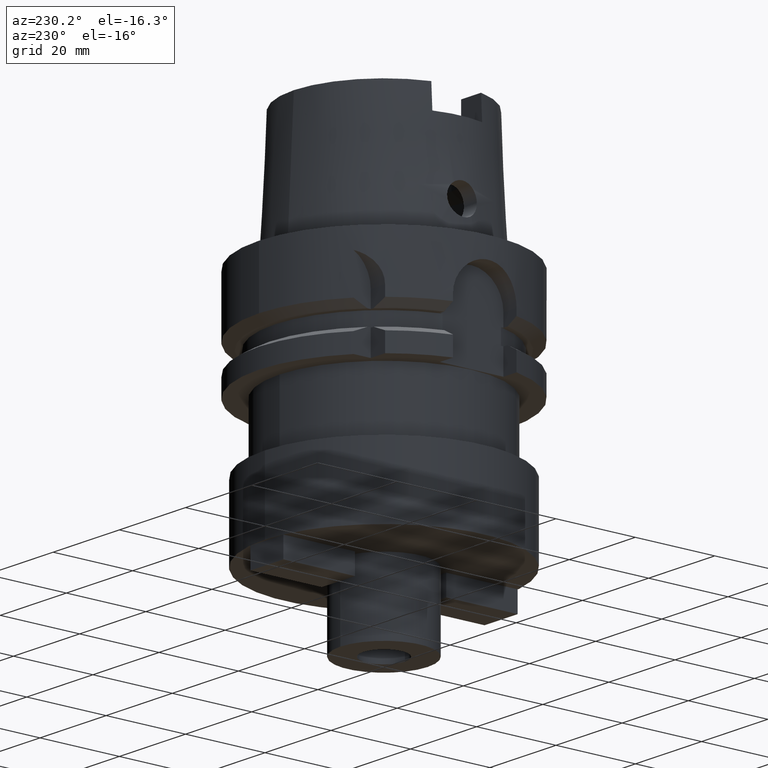
[diagram: clean part render]
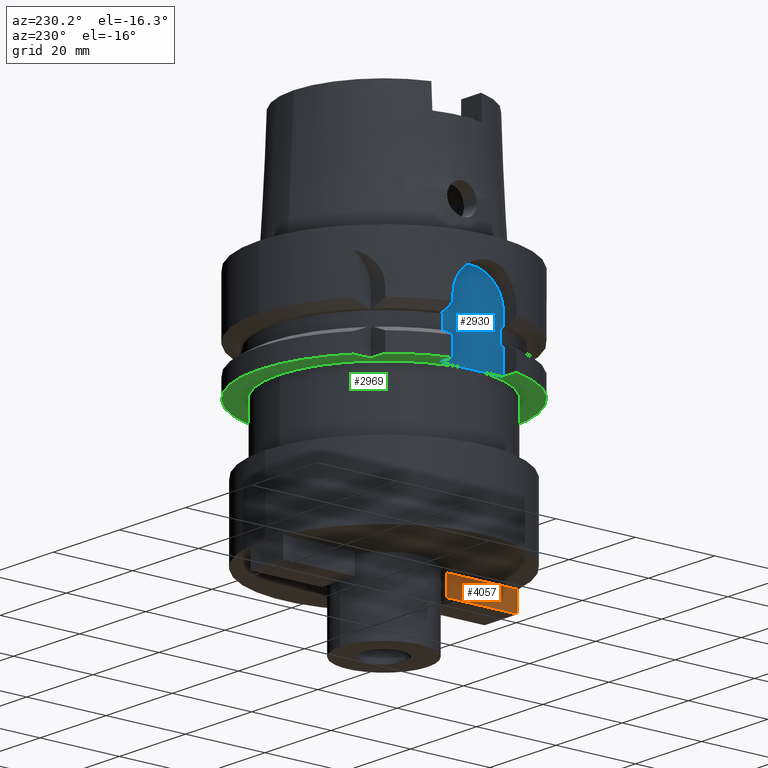
[diagram: same view with three faces highlighted in distinct colors, each labeled with its STEP entity id]
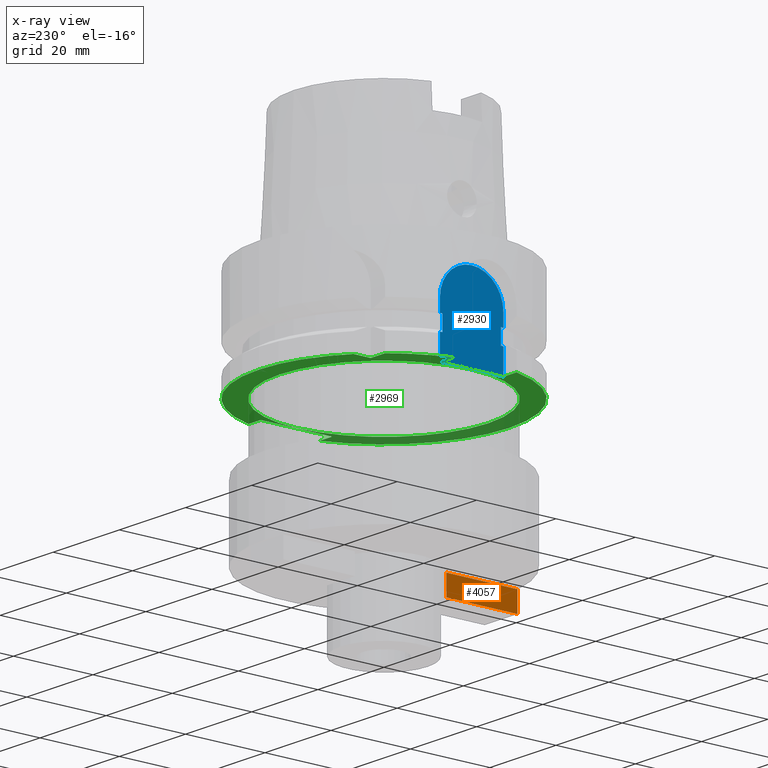
[diagram: x-ray of the same camera — body ghosted, the three highlighted faces saturated]
A machine part, auxiliary view with three faces highlighted in distinct colors.
The next image is the same camera in x-ray (body ghosted, the three faces saturated) — at least one of them is partly hidden behind the body in this view.
Their STEP definitions:

[orange] entity #4057 — the highlighted planar face has unit normal (-1, 0, 0).
#2103=DIRECTION('',(0.E0,-1.E0,0.E0));
#2104=VECTOR('',#2103,1.8E1);
#2105=CARTESIAN_POINT('',(-5.E0,-1.15E1,-6.E1));
#2106=LINE('',#2105,#2104);
#2110=DIRECTION('',(0.E0,0.E0,-1.E0));
#2111=VECTOR('',#2110,5.E0);
#2112=CARTESIAN_POINT('',(-5.E0,-2.95E1,-6.E1));
#2113=LINE('',#2112,#2111);
#2117=DIRECTION('',(0.E0,1.E0,0.E0));
#2118=VECTOR('',#2117,1.8E1);
#2119=CARTESIAN_POINT('',(-5.E0,-2.95E1,-6.5E1));
#2120=LINE('',#2119,#2118);
#2124=DIRECTION('',(0.E0,0.E0,1.E0));
#2125=VECTOR('',#2124,5.E0);
#2126=CARTESIAN_POINT('',(-5.E0,-1.15E1,-6.5E1));
#2127=LINE('',#2126,#2125);
#2299=CARTESIAN_POINT('',(-5.E0,-2.95E1,-6.E1));
#2300=VERTEX_POINT('',#2299);
#2301=CARTESIAN_POINT('',(-5.E0,-1.15E1,-6.E1));
#2302=VERTEX_POINT('',#2301);
#2485=CARTESIAN_POINT('',(-5.E0,-1.15E1,-6.5E1));
#2486=VERTEX_POINT('',#2485);
#2487=CARTESIAN_POINT('',(-5.E0,-2.95E1,-6.5E1));
#2488=VERTEX_POINT('',#2487);
#4044=CARTESIAN_POINT('',(-5.E0,0.E0,0.E0));
#4045=DIRECTION('',(-1.E0,0.E0,0.E0));
#4046=DIRECTION('',(0.E0,0.E0,1.E0));
#4047=AXIS2_PLACEMENT_3D('',#4044,#4045,#4046);
#4048=PLANE('',#4047);
#4049=ORIENTED_EDGE('',*,*,#3476,.T.);
#4051=ORIENTED_EDGE('',*,*,#4050,.T.);
#4053=ORIENTED_EDGE('',*,*,#4052,.T.);
#4054=ORIENTED_EDGE('',*,*,#4036,.T.);
#4055=EDGE_LOOP('',(#4049,#4051,#4053,#4054));
#4056=FACE_OUTER_BOUND('',#4055,.F.);
#3476=EDGE_CURVE('',#2302,#2300,#2106,.T.);
#4036=EDGE_CURVE('',#2486,#2302,#2127,.T.);
#4050=EDGE_CURVE('',#2300,#2488,#2113,.T.);
#4052=EDGE_CURVE('',#2488,#2486,#2120,.T.);
#4057=ADVANCED_FACE('',(#4056),#4048,.T.);

[blue] entity #2930 — the highlighted planar face has unit normal (1, 0, 0).
#563=DIRECTION('',(0.E0,0.E0,-1.E0));
#564=VECTOR('',#563,3.125E0);
#565=CARTESIAN_POINT('',(-2.65E1,8.E0,-1.3E1));
#566=LINE('',#565,#564);
#606=DIRECTION('',(0.E0,0.E0,1.E0));
#607=VECTOR('',#606,3.125E0);
#608=CARTESIAN_POINT('',(-2.65E1,-8.E0,-1.6125E1));
#609=LINE('',#608,#607);
#659=DIRECTION('',(0.E0,1.E0,0.E0));
#660=VECTOR('',#659,1.6E1);
#661=CARTESIAN_POINT('',(-2.65E1,-8.E0,-2.6E1));
#662=LINE('',#661,#660);
#666=DIRECTION('',(-5.998158823386E-14,1.E0,0.E0));
#667=VECTOR('',#666,6.515307716501E-1);
#668=CARTESIAN_POINT('',(-2.65E1,7.348469228350E0,-1.6125E1));
#669=LINE('',#668,#667);
#673=CARTESIAN_POINT('',(-2.65E1,0.E0,-1.3E1));
#674=DIRECTION('',(1.E0,0.E0,0.E0));
#675=DIRECTION('',(0.E0,1.E0,0.E0));
#676=AXIS2_PLACEMENT_3D('',#673,#674,#675);
#681=CARTESIAN_POINT('',(-2.65E1,0.E0,-1.3E1));
#682=DIRECTION('',(1.E0,0.E0,0.E0));
#683=DIRECTION('',(0.E0,0.E0,1.E0));
#684=AXIS2_PLACEMENT_3D('',#681,#682,#683);
#689=DIRECTION('',(5.998158823386E-14,1.E0,0.E0));
#690=VECTOR('',#689,6.515307716501E-1);
#691=CARTESIAN_POINT('',(-2.65E1,-8.E0,-1.6125E1));
#692=LINE('',#691,#690);
#907=DIRECTION('',(0.E0,0.E0,1.E0));
#908=VECTOR('',#907,6.125E0);
#909=CARTESIAN_POINT('',(-2.65E1,-8.E0,-2.6E1));
#910=LINE('',#909,#908);
#931=DIRECTION('',(5.998158823386E-14,1.E0,0.E0));
#932=VECTOR('',#931,6.515307716501E-1);
#933=CARTESIAN_POINT('',(-2.65E1,-8.E0,-1.9875E1));
#934=LINE('',#933,#932);
#977=DIRECTION('',(0.E0,0.E0,1.E0));
#978=VECTOR('',#977,3.75E0);
#979=CARTESIAN_POINT('',(-2.65E1,-7.348469228350E0,-1.9875E1));
#980=LINE('',#979,#978);
#1134=DIRECTION('',(0.E0,0.E0,-1.E0));
#1135=VECTOR('',#1134,3.75E0);
#1136=CARTESIAN_POINT('',(-2.65E1,7.348469228350E0,-1.6125E1));
#1137=LINE('',#1136,#1135);
#1187=DIRECTION('',(-5.998158823386E-14,1.E0,0.E0));
#1188=VECTOR('',#1187,6.515307716501E-1);
#1189=CARTESIAN_POINT('',(-2.65E1,7.348469228350E0,-1.9875E1));
#1190=LINE('',#1189,#1188);
#1252=DIRECTION('',(0.E0,0.E0,-1.E0));
#1253=VECTOR('',#1252,6.125E0);
#1254=CARTESIAN_POINT('',(-2.65E1,8.E0,-1.9875E1));
#1255=LINE('',#1254,#1253);
#2327=CARTESIAN_POINT('',(-2.65E1,8.E0,-2.6E1));
#2328=VERTEX_POINT('',#2327);
#2329=CARTESIAN_POINT('',(-2.65E1,-8.E0,-2.6E1));
#2330=VERTEX_POINT('',#2329);
#2373=CARTESIAN_POINT('',(-2.65E1,-8.E0,-1.9875E1));
#2374=VERTEX_POINT('',#2373);
#2377=CARTESIAN_POINT('',(-2.65E1,-8.E0,-1.6125E1));
#2379=VERTEX_POINT('',#2377);
#2381=CARTESIAN_POINT('',(-2.65E1,-8.E0,-1.3E1));
#2382=VERTEX_POINT('',#2381);
#2387=CARTESIAN_POINT('',(-2.65E1,8.E0,-1.9875E1));
#2388=VERTEX_POINT('',#2387);
#2389=CARTESIAN_POINT('',(-2.65E1,7.348469228350E0,-1.9875E1));
#2390=VERTEX_POINT('',#2389);
#2391=CARTESIAN_POINT('',(-2.65E1,7.348469228350E0,-1.6125E1));
#2392=VERTEX_POINT('',#2391);
#2393=CARTESIAN_POINT('',(-2.65E1,8.E0,-1.6125E1));
#2394=VERTEX_POINT('',#2393);
#2395=CARTESIAN_POINT('',(-2.65E1,8.E0,-1.3E1));
#2396=VERTEX_POINT('',#2395);
#2397=CARTESIAN_POINT('',(-2.65E1,0.E0,-5.E0));
#2398=VERTEX_POINT('',#2397);
#2399=CARTESIAN_POINT('',(-2.65E1,-7.348469228350E0,-1.6125E1));
#2400=VERTEX_POINT('',#2399);
#2401=CARTESIAN_POINT('',(-2.65E1,-7.348469228350E0,-1.9875E1));
#2402=VERTEX_POINT('',#2401);
#2903=CARTESIAN_POINT('',(-2.65E1,0.E0,0.E0));
#2904=DIRECTION('',(1.E0,0.E0,0.E0));
#2905=DIRECTION('',(0.E0,0.E0,1.E0));
#2906=AXIS2_PLACEMENT_3D('',#2903,#2904,#2905);
#2907=PLANE('',#2906);
#2909=ORIENTED_EDGE('',*,*,#2908,.T.);
#2911=ORIENTED_EDGE('',*,*,#2910,.F.);
#2913=ORIENTED_EDGE('',*,*,#2912,.F.);
#2915=ORIENTED_EDGE('',*,*,#2914,.F.);
#2916=ORIENTED_EDGE('',*,*,#2777,.T.);
#2917=ORIENTED_EDGE('',*,*,#2843,.F.);
#2918=ORIENTED_EDGE('',*,*,#2858,.T.);
#2919=ORIENTED_EDGE('',*,*,#2856,.T.);
#2920=ORIENTED_EDGE('',*,*,#2871,.F.);
#2921=ORIENTED_EDGE('',*,*,#2885,.T.);
#2923=ORIENTED_EDGE('',*,*,#2922,.F.);
#2925=ORIENTED_EDGE('',*,*,#2924,.F.);
#2927=ORIENTED_EDGE('',*,*,#2926,.F.);
#2928=EDGE_LOOP('',(#2909,#2911,#2913,#2915,#2916,#2917,#2918,#2919,#2920,#2921,
#2923,#2925,#2927));
#2929=FACE_OUTER_BOUND('',#2928,.F.);
#677=CIRCLE('',#676,8.E0);
#685=CIRCLE('',#684,8.E0);
#2777=EDGE_CURVE('',#2392,#2394,#669,.T.);
#2843=EDGE_CURVE('',#2396,#2394,#566,.T.);
#2856=EDGE_CURVE('',#2398,#2382,#685,.T.);
#2858=EDGE_CURVE('',#2396,#2398,#677,.T.);
#2871=EDGE_CURVE('',#2379,#2382,#609,.T.);
#2885=EDGE_CURVE('',#2379,#2400,#692,.T.);
#2908=EDGE_CURVE('',#2330,#2328,#662,.T.);
#2910=EDGE_CURVE('',#2388,#2328,#1255,.T.);
#2912=EDGE_CURVE('',#2390,#2388,#1190,.T.);
#2914=EDGE_CURVE('',#2392,#2390,#1137,.T.);
#2922=EDGE_CURVE('',#2402,#2400,#980,.T.);
#2924=EDGE_CURVE('',#2374,#2402,#934,.T.);
#2926=EDGE_CURVE('',#2330,#2374,#910,.T.);
#2930=ADVANCED_FACE('',(#2929),#2907,.F.);

[green] entity #2969 — the highlighted planar face has unit normal (0, 0, 1).
#659=DIRECTION('',(0.E0,1.E0,0.E0));
#660=VECTOR('',#659,1.6E1);
#661=CARTESIAN_POINT('',(-2.65E1,-8.E0,-2.6E1));
#662=LINE('',#661,#660);
#696=DIRECTION('',(-1.E0,-1.540316790609E-13,0.E0));
#697=VECTOR('',#696,4.336187047278E0);
#698=CARTESIAN_POINT('',(-2.E1,2.E1,-2.6E1));
#699=LINE('',#698,#697);
#703=CARTESIAN_POINT('',(0.E0,0.E0,-2.6E1));
#704=DIRECTION('',(0.E0,0.E0,1.E0));
#705=DIRECTION('',(-7.725773665802E-1,6.349206349206E-1,0.E0));
#706=AXIS2_PLACEMENT_3D('',#703,#704,#705);
#711=DIRECTION('',(-1.E0,-8.686570378871E-14,0.E0));
#712=VECTOR('',#711,3.967195473163E0);
#713=CARTESIAN_POINT('',(-2.65E1,-8.E0,-2.6E1));
#714=LINE('',#713,#712);
#718=CARTESIAN_POINT('',(0.E0,0.E0,-2.6E1));
#719=DIRECTION('',(0.E0,0.E0,1.E0));
#720=DIRECTION('',(-9.672125547036E-1,-2.539682539683E-1,0.E0));
#721=AXIS2_PLACEMENT_3D('',#718,#719,#720);
#726=CARTESIAN_POINT('',(0.E0,0.E0,-2.6E1));
#727=DIRECTION('',(0.E0,0.E0,1.E0));
#728=DIRECTION('',(0.E0,-1.E0,0.E0));
#729=AXIS2_PLACEMENT_3D('',#726,#727,#728);
#734=DIRECTION('',(0.E0,1.E0,0.E0));
#735=VECTOR('',#734,1.8E1);
#736=CARTESIAN_POINT('',(2.65E1,-9.E0,-2.6E1));
#737=LINE('',#736,#735);
#741=DIRECTION('',(1.E0,-7.275179563200E-14,0.E0));
#742=VECTOR('',#741,3.686917696248E0);
#743=CARTESIAN_POINT('',(2.65E1,9.E0,-2.6E1));
#744=LINE('',#743,#742);
#748=CARTESIAN_POINT('',(0.E0,0.E0,-2.6E1));
#749=DIRECTION('',(0.E0,0.E0,1.E0));
#750=DIRECTION('',(9.583148474999E-1,2.857142857143E-1,0.E0));
#751=AXIS2_PLACEMENT_3D('',#748,#749,#750);
#756=CARTESIAN_POINT('',(0.E0,0.E0,-2.6E1));
#757=DIRECTION('',(0.E0,0.E0,1.E0));
#758=DIRECTION('',(0.E0,1.E0,0.E0));
#759=AXIS2_PLACEMENT_3D('',#756,#757,#758);
#764=CARTESIAN_POINT('',(0.E0,0.E0,-2.6E1));
#765=DIRECTION('',(0.E0,0.E0,-1.E0));
#766=DIRECTION('',(0.E0,-1.E0,0.E0));
#767=AXIS2_PLACEMENT_3D('',#764,#765,#766);
#772=CARTESIAN_POINT('',(0.E0,0.E0,-2.6E1));
#773=DIRECTION('',(0.E0,0.E0,-1.E0));
#774=DIRECTION('',(0.E0,1.E0,0.E0));
#775=AXIS2_PLACEMENT_3D('',#772,#773,#774);
#780=DIRECTION('',(1.556703139446E-13,1.E0,0.E0));
#781=VECTOR('',#780,4.336187047278E0);
#782=CARTESIAN_POINT('',(-2.E1,2.E1,-2.6E1));
#783=LINE('',#782,#781);
#876=DIRECTION('',(1.E0,6.889739586341E-14,0.E0));
#877=VECTOR('',#876,3.686917696248E0);
#878=CARTESIAN_POINT('',(2.65E1,-9.E0,-2.6E1));
#879=LINE('',#878,#877);
#1235=DIRECTION('',(-1.E0,8.776122650818E-14,0.E0));
#1236=VECTOR('',#1235,3.967195473163E0);
#1237=CARTESIAN_POINT('',(-2.65E1,8.E0,-2.6E1));
#1238=LINE('',#1237,#1236);
#2315=CARTESIAN_POINT('',(0.E0,2.63E1,-2.6E1));
#2316=VERTEX_POINT('',#2315);
#2317=CARTESIAN_POINT('',(0.E0,-2.63E1,-2.6E1));
#2318=VERTEX_POINT('',#2317);
#2319=CARTESIAN_POINT('',(-2.E1,2.E1,-2.6E1));
#2320=CARTESIAN_POINT('',(-2.E1,2.433618704728E1,-2.6E1));
#2321=VERTEX_POINT('',#2319);
#2322=VERTEX_POINT('',#2320);
#2323=CARTESIAN_POINT('',(-2.433618704728E1,2.E1,-2.6E1));
#2324=VERTEX_POINT('',#2323);
#2325=CARTESIAN_POINT('',(-3.046719547316E1,8.E0,-2.6E1));
#2326=VERTEX_POINT('',#2325);
#2327=CARTESIAN_POINT('',(-2.65E1,8.E0,-2.6E1));
#2328=VERTEX_POINT('',#2327);
#2329=CARTESIAN_POINT('',(-2.65E1,-8.E0,-2.6E1));
#2330=VERTEX_POINT('',#2329);
#2331=CARTESIAN_POINT('',(-3.046719547316E1,-8.E0,-2.6E1));
#2332=VERTEX_POINT('',#2331);
#2333=CARTESIAN_POINT('',(-1.569039500652E-14,-3.15E1,-2.6E1));
#2334=CARTESIAN_POINT('',(3.018691769625E1,-9.E0,-2.6E1));
#2335=VERTEX_POINT('',#2333);
#2336=VERTEX_POINT('',#2334);
#2337=CARTESIAN_POINT('',(2.65E1,-9.E0,-2.6E1));
#2338=VERTEX_POINT('',#2337);
#2339=CARTESIAN_POINT('',(2.65E1,9.E0,-2.6E1));
#2340=VERTEX_POINT('',#2339);
#2341=CARTESIAN_POINT('',(3.018691769625E1,9.E0,-2.6E1));
#2342=VERTEX_POINT('',#2341);
#2343=CARTESIAN_POINT('',(1.065814103640E-14,3.15E1,-2.6E1));
#2344=VERTEX_POINT('',#2343);
#2931=CARTESIAN_POINT('',(0.E0,0.E0,-2.6E1));
#2932=DIRECTION('',(0.E0,0.E0,1.E0));
#2933=DIRECTION('',(0.E0,1.E0,0.E0));
#2934=AXIS2_PLACEMENT_3D('',#2931,#2932,#2933);
#2935=PLANE('',#2934);
#2937=ORIENTED_EDGE('',*,*,#2936,.F.);
#2939=ORIENTED_EDGE('',*,*,#2938,.T.);
#2941=ORIENTED_EDGE('',*,*,#2940,.T.);
#2943=ORIENTED_EDGE('',*,*,#2942,.F.);
#2944=ORIENTED_EDGE('',*,*,#2908,.F.);
#2946=ORIENTED_EDGE('',*,*,#2945,.T.);
#2948=ORIENTED_EDGE('',*,*,#2947,.T.);
#2950=ORIENTED_EDGE('',*,*,#2949,.T.);
#2952=ORIENTED_EDGE('',*,*,#2951,.F.);
#2954=ORIENTED_EDGE('',*,*,#2953,.T.);
#2956=ORIENTED_EDGE('',*,*,#2955,.T.);
#2958=ORIENTED_EDGE('',*,*,#2957,.T.);
#2960=ORIENTED_EDGE('',*,*,#2959,.T.);
#2961=EDGE_LOOP('',(#2937,#2939,#2941,#2943,#2944,#2946,#2948,#2950,#2952,#2954,
#2956,#2958,#2960));
#2962=FACE_OUTER_BOUND('',#2961,.F.);
#2964=ORIENTED_EDGE('',*,*,#2963,.T.);
#2966=ORIENTED_EDGE('',*,*,#2965,.T.);
#2967=EDGE_LOOP('',(#2964,#2966));
#2968=FACE_BOUND('',#2967,.F.);
#707=CIRCLE('',#706,3.15E1);
#722=CIRCLE('',#721,3.15E1);
#730=CIRCLE('',#729,3.15E1);
#752=CIRCLE('',#751,3.15E1);
#760=CIRCLE('',#759,3.15E1);
#768=CIRCLE('',#767,2.63E1);
#776=CIRCLE('',#775,2.63E1);
#2908=EDGE_CURVE('',#2330,#2328,#662,.T.);
#2936=EDGE_CURVE('',#2321,#2322,#783,.T.);
#2938=EDGE_CURVE('',#2321,#2324,#699,.T.);
#2940=EDGE_CURVE('',#2324,#2326,#707,.T.);
#2942=EDGE_CURVE('',#2328,#2326,#1238,.T.);
#2945=EDGE_CURVE('',#2330,#2332,#714,.T.);
#2947=EDGE_CURVE('',#2332,#2335,#722,.T.);
#2949=EDGE_CURVE('',#2335,#2336,#730,.T.);
#2951=EDGE_CURVE('',#2338,#2336,#879,.T.);
#2953=EDGE_CURVE('',#2338,#2340,#737,.T.);
#2955=EDGE_CURVE('',#2340,#2342,#744,.T.);
#2957=EDGE_CURVE('',#2342,#2344,#752,.T.);
#2959=EDGE_CURVE('',#2344,#2322,#760,.T.);
#2963=EDGE_CURVE('',#2318,#2316,#768,.T.);
#2965=EDGE_CURVE('',#2316,#2318,#776,.T.);
#2969=ADVANCED_FACE('',(#2962,#2968),#2935,.F.);